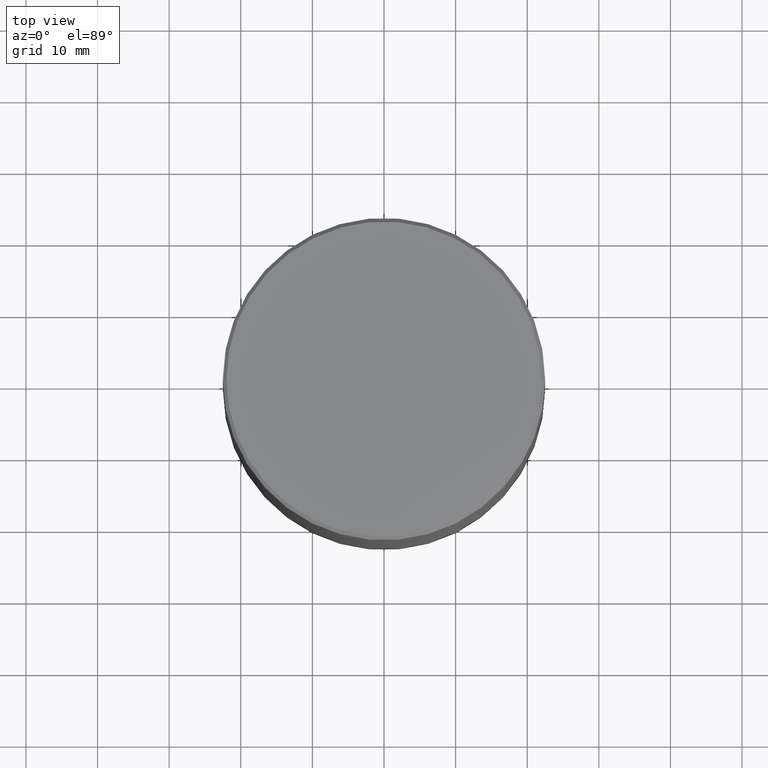
[diagram: clean part render]
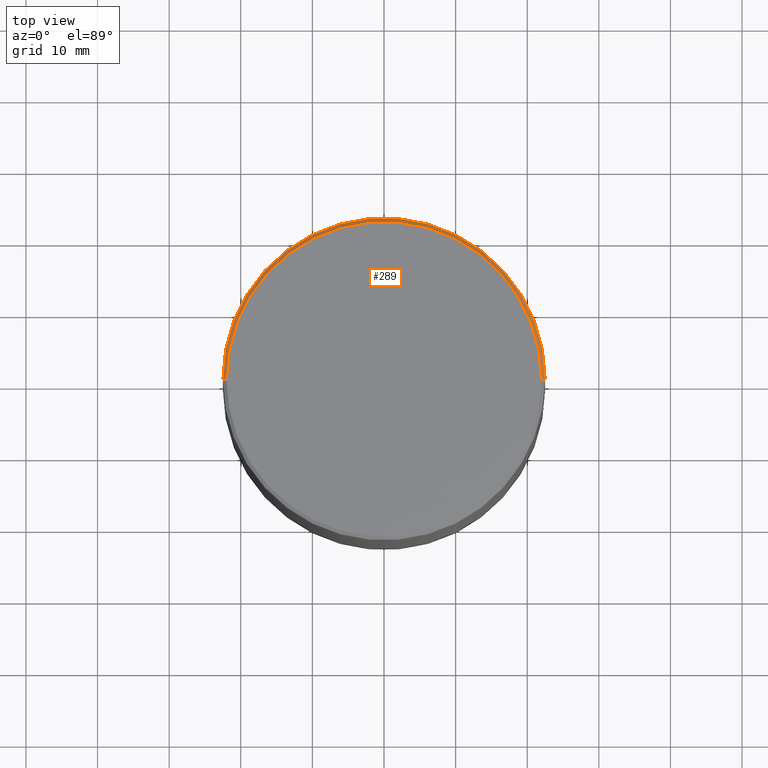
[diagram: same view with one face highlighted and labeled with its STEP entity id]
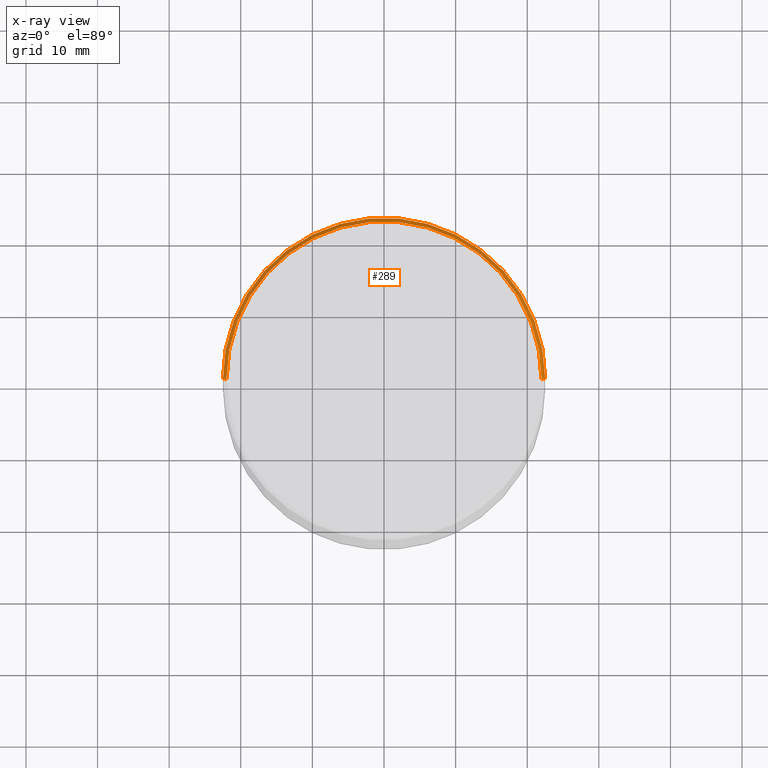
[diagram: x-ray of the same camera — body ghosted, the highlighted face saturated]
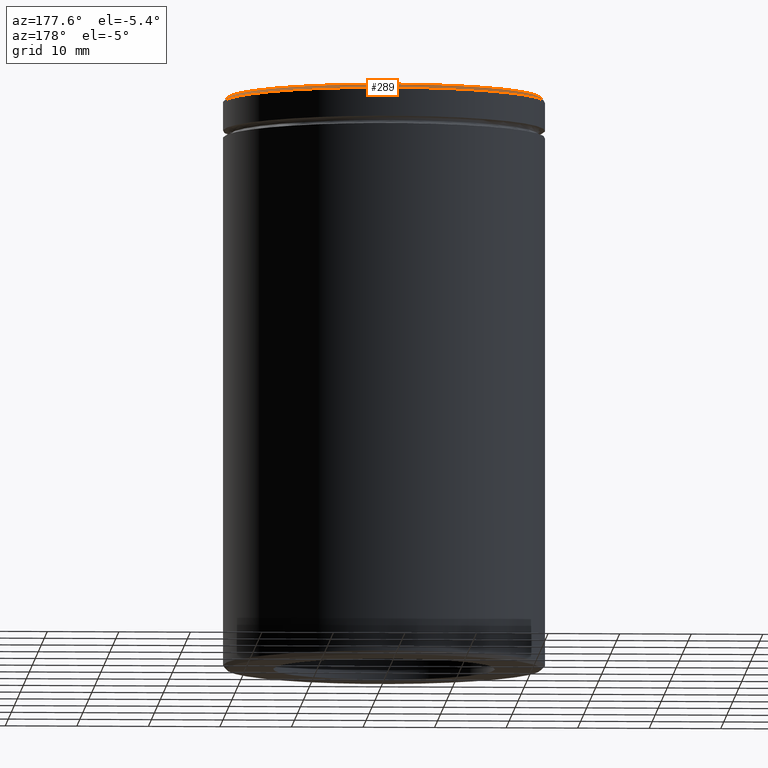
[diagram: same view with one face highlighted and labeled with its STEP entity id]
A machine part, top view. The second image highlights one B-rep face of the part: STEP entity #289.
The next image is the same camera in x-ray: the body ghosted, the highlighted face saturated — about 0% of this face is hidden behind the body in this view.
A second angle (auxiliary view) of the same face is appended — the face is thin or edge-on in the first view.
In plain terms, the highlighted conical surface has half-angle 45 deg.
Its self-contained STEP definition (entity closure, byte-faithful):
#2 = CARTESIAN_POINT ( 'NONE',  ( -21.99999999999999289, 0.000000000000000000, 0.000000000000000000 ) ) ;
#4 = EDGE_LOOP ( 'NONE', ( #280, #177, #48, #162 ) ) ;
#29 = EDGE_CURVE ( 'NONE', #403, #329, #89, .T. ) ;
#31 = CONICAL_SURFACE ( 'NONE', #549, 21.99999999999999289, 0.7853981633974482790 ) ;
#35 = EDGE_CURVE ( 'NONE', #41, #400, #505, .T. ) ;
#41 = VERTEX_POINT ( 'NONE', #121 ) ;
#48 = ORIENTED_EDGE ( 'NONE', *, *, #35, .F. ) ;
#89 = CIRCLE ( 'NONE', #332, 21.99999999999999289 ) ;
#104 = DIRECTION ( 'NONE',  ( 0.000000000000000000, 0.000000000000000000, -1.000000000000000000 ) ) ;
#120 = EDGE_CURVE ( 'NONE', #403, #400, #355, .T. ) ;
#121 = CARTESIAN_POINT ( 'NONE',  ( -22.50000000000000000, 2.755455298081544778E-15, -0.5000000000000073275 ) ) ;
#162 = ORIENTED_EDGE ( 'NONE', *, *, #463, .F. ) ;
#177 = ORIENTED_EDGE ( 'NONE', *, *, #120, .T. ) ;
#211 = CARTESIAN_POINT ( 'NONE',  ( 22.50000000000000000, 0.000000000000000000, -0.5000000000000073275 ) ) ;
#212 = DIRECTION ( 'NONE',  ( 1.000000000000000000, 0.000000000000000000, 0.000000000000000000 ) ) ;
#216 = CARTESIAN_POINT ( 'NONE',  ( 0.000000000000000000, 0.000000000000000000, 0.000000000000000000 ) ) ;
#280 = ORIENTED_EDGE ( 'NONE', *, *, #29, .F. ) ;
#289 = ADVANCED_FACE ( 'NONE', ( #335 ), #31, .T. ) ;
#329 = VERTEX_POINT ( 'NONE', #539 ) ;
#332 = AXIS2_PLACEMENT_3D ( 'NONE', #216, #441, #352 ) ;
#335 = FACE_OUTER_BOUND ( 'NONE', #4, .T. ) ;
#352 = DIRECTION ( 'NONE',  ( 1.000000000000000000, 0.000000000000000000, 0.000000000000000000 ) ) ;
#355 = LINE ( 'NONE', #474, #425 ) ;
#364 = DIRECTION ( 'NONE',  ( -0.7071067811865474617, 0.000000000000000000, -0.7071067811865474617 ) ) ;
#374 = DIRECTION ( 'NONE',  ( -1.000000000000000000, 0.000000000000000000, 0.000000000000000000 ) ) ;
#391 = DIRECTION ( 'NONE',  ( 0.7071067811865474617, 8.659560562354932858E-17, -0.7071067811865474617 ) ) ;
#398 = VECTOR ( 'NONE', #364, 1000.000000000000114 ) ;
#400 = VERTEX_POINT ( 'NONE', #211 ) ;
#403 = VERTEX_POINT ( 'NONE', #478 ) ;
#425 = VECTOR ( 'NONE', #391, 1000.000000000000114 ) ;
#430 = CARTESIAN_POINT ( 'NONE',  ( 0.000000000000000000, 0.000000000000000000, 0.000000000000000000 ) ) ;
#441 = DIRECTION ( 'NONE',  ( -0.000000000000000000, -0.000000000000000000, 1.000000000000000000 ) ) ;
#449 = LINE ( 'NONE', #2, #398 ) ;
#463 = EDGE_CURVE ( 'NONE', #329, #41, #449, .T. ) ;
#474 = CARTESIAN_POINT ( 'NONE',  ( 21.99999999999999289, 2.694222958124176020E-15, 0.000000000000000000 ) ) ;
#478 = CARTESIAN_POINT ( 'NONE',  ( 21.99999999999999289, 2.724839128102860202E-15, 0.000000000000000000 ) ) ;
#505 = CIRCLE ( 'NONE', #547, 22.50000000000000000 ) ;
#508 = DIRECTION ( 'NONE',  ( 0.000000000000000000, 0.000000000000000000, -1.000000000000000000 ) ) ;
#519 = CARTESIAN_POINT ( 'NONE',  ( 0.000000000000000000, 0.000000000000000000, -0.5000000000000073275 ) ) ;
#539 = CARTESIAN_POINT ( 'NONE',  ( -21.99999999999999289, 0.000000000000000000, 0.000000000000000000 ) ) ;
#547 = AXIS2_PLACEMENT_3D ( 'NONE', #519, #508, #212 ) ;
#549 = AXIS2_PLACEMENT_3D ( 'NONE', #430, #104, #374 ) ;